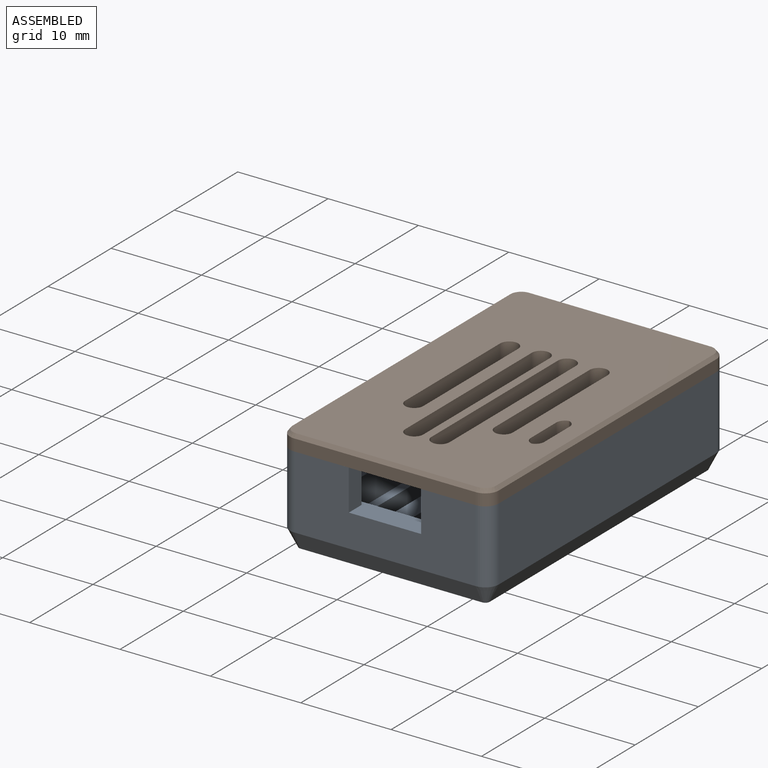
[diagram: assembled view]
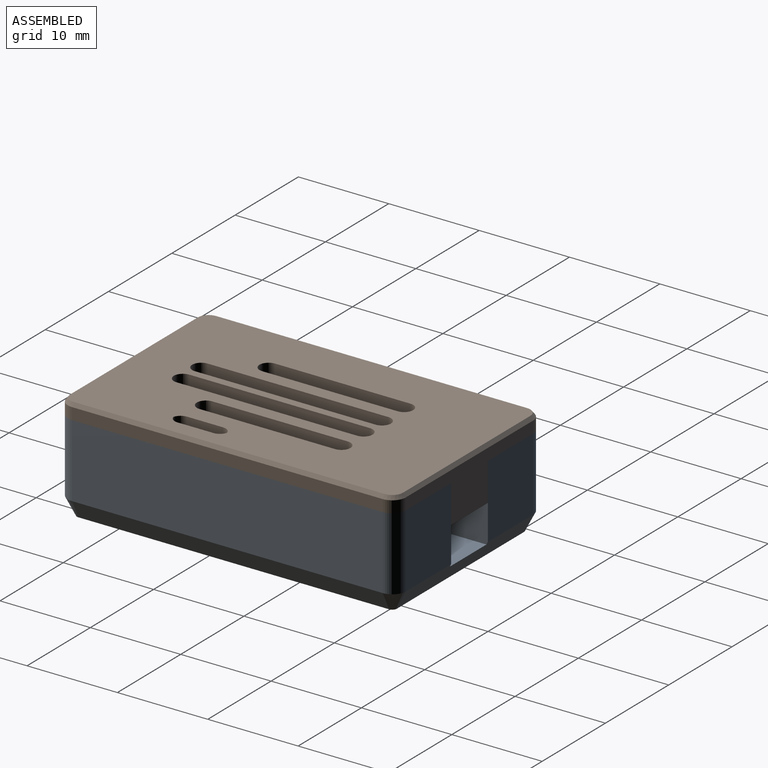
[diagram: assembled view, second angle]
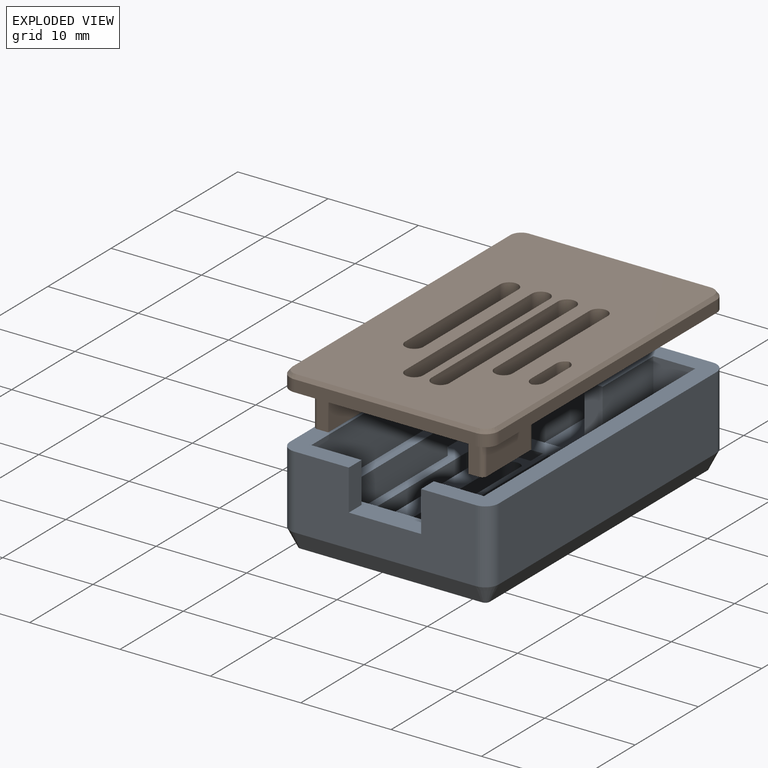
[diagram: exploded view]
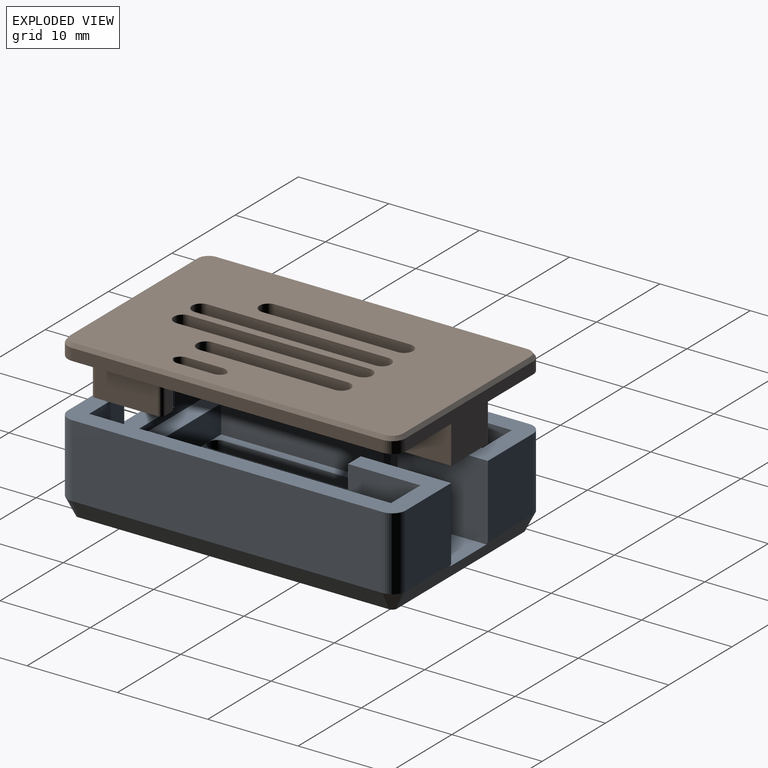
[diagram: exploded view, second angle]
ASSEMBLY  parts=2 mates=3
PART A: 67 faces, bbox 23.1x37.4x10.1 mm
  f0: plane 31.4x9.25mm, normal (0,0,1), area 146.6mm2, adj f2,f9,f13,f17,f18,f29,f31,f33
  f1: plane 3.7x1.1mm, normal (0,-1,0), area 4.1mm2, adj f7,f30,f32,f65
  f2: plane 16.9x3.1mm, normal (0,1,0), area 51.7mm2, adj f0,f7,f18,f19,f21,f32,f65,f66
  f3: plane 8.1x7.15mm, normal (0,1,0), area 57.9mm2, adj f12,f26,f38,f52
  f4: plane 35.4x21.1mm, normal (0,0,-1), area 587mm2, adj f41,f42,f43,f44,f45,f46,f47,f48
  f5: plane 37.4x8.65mm, normal (0,0,1), area 114.2mm2, adj f6,f10,f11,f14,f16,f22,f25,f27
  f6: plane 8.4x2mm, normal (0,-1,0), area 15.6mm2, adj f5,f7,f27,f30,f32,f35
  f7: plane 31.4x9.25mm, normal (0,0,1), area 146.6mm2, adj f1,f2,f6,f16,f19,f20,f30,f35
  f8: plane 9.85x5.8mm, normal (0,0,1), area 57.1mm2, adj f26,f27,f28,f52
  f9: plane 8.4x2mm, normal (0,-1,0), area 15.6mm2, adj f0,f12,f26,f29,f32,f34
  f10: plane 20.1x8.1mm, normal (0,-1,0), area 126.8mm2, adj f5,f12,f23,f24,f25,f39,f40,f53
  f11: plane 19.1x5.3mm, normal (0,1,0), area 65.2mm2, adj f5,f12,f13,f16,f21,f23,f24,f25
  f12: plane 37.4x8.65mm, normal (0,0,1), area 114.2mm2, adj f3,f9,f10,f11,f13,f15,f24,f26
  f13: plane 33.4x8.4mm, normal (-1,0,0), area 218.6mm2, adj f0,f11,f12,f17,f21,f33
  f14: plane 34.4x8.1mm, normal (-1,0,0), area 278.6mm2, adj f5,f37,f39,f56
  f15: plane 34.4x8.1mm, normal (1,0,0), area 278.6mm2, adj f12,f38,f40,f49
  f16: plane 33.4x8.4mm, normal (1,0,0), area 218.6mm2, adj f5,f7,f11,f20,f21,f36
  f17: plane 3.1x1.1mm, normal (0,1,0), area 3.4mm2, adj f0,f13,f18,f21
  f18: plane 18x3.1mm, normal (-1,0,0), area 55.8mm2, adj f0,f2,f17,f21
  f19: plane 18x3.1mm, normal (1,0,0), area 55.8mm2, adj f2,f7,f20,f21
  f20: plane 3.1x1.1mm, normal (0,1,0), area 3.4mm2, adj f7,f16,f19,f21
  f21: plane 20x19.1mm, normal (0,0,1), area 77.8mm2, adj f2,f11,f13,f16,f17,f18,f19,f20
  f22: plane 8.1x7.15mm, normal (0,1,0), area 57.9mm2, adj f5,f27,f37,f52
  f23: plane 8x2mm, normal (0,0,1), area 16mm2, adj f10,f11,f24,f25
  f24: plane 4.5x2mm, normal (-1,0,0), area 9mm2, adj f10,f11,f12,f23
  f25: plane 4.5x2mm, normal (1,0,0), area 9mm2, adj f5,f10,f11,f23
  f26: plane 10x8.4mm, normal (-1,0,0), area 84mm2, adj f3,f8,f9,f12,f28,f52
  f27: plane 10x8.4mm, normal (1,0,0), area 84mm2, adj f5,f6,f8,f22,f28,f52
  f28: plane 5.8x1.1mm, normal (0,1,0), area 6.4mm2, adj f8,f26,f27,f32
  f29: plane 2x1.1mm, normal (1,0,0), area 2.2mm2, adj f0,f9,f31,f32
  f30: plane 2x1.1mm, normal (-1,0,0), area 2.2mm2, adj f1,f6,f7,f32
  f31: plane 3.7x1.1mm, normal (0,-1,0), area 4.1mm2, adj f0,f29,f32,f66
  f32: plane 23.4x8mm, normal (0,0,1), area 28.8mm2, adj f1,f2,f6,f9,f28,f29,f30,f31
  f33: plane 8.4x4.65mm, normal (0,-1,0), area 39.1mm2, adj f0,f12,f13,f34
  f34: plane 8.4x8mm, normal (1,0,0), area 67.2mm2, adj f0,f9,f12,f33
  f35: plane 8.4x8mm, normal (-1,0,0), area 67.2mm2, adj f5,f6,f7,f36
  f36: plane 8.4x4.65mm, normal (0,-1,0), area 39.1mm2, adj f5,f7,f16,f35
  f37: cylinder r=1.5mm len=8.1mm, axis (0,0,1), area 19.1mm2, adj f5,f14,f22,f54
  f38: cylinder r=1.5mm len=8.1mm, axis (0,0,-1), area 19.1mm2, adj f3,f12,f15,f50
  f39: cylinder r=1.5mm len=8.1mm, axis (0,0,-1), area 19.1mm2, adj f5,f10,f14,f55
  f40: cylinder r=1.5mm len=8.1mm, axis (0,0,1), area 19.1mm2, adj f10,f12,f15,f51
  f41: plane 18.4x1.7mm, normal (1,0,0), area 31.3mm2, adj f4,f7,f57,f58
  f42: plane 18.4x1.7mm, normal (-1,0,0), area 31.3mm2, adj f4,f7,f57,f58
  f43: plane 18.4x1.7mm, normal (1,0,0), area 31.3mm2, adj f4,f7,f59,f60
  f44: plane 18.4x1.7mm, normal (-1,0,0), area 31.3mm2, adj f4,f7,f59,f60
  f45: plane 18.4x1.7mm, normal (1,0,0), area 31.3mm2, adj f0,f4,f61,f62
  f46: plane 18.4x1.7mm, normal (-1,0,0), area 31.3mm2, adj f0,f4,f61,f62
  f47: plane 18.4x1.7mm, normal (1,0,0), area 31.3mm2, adj f0,f4,f63,f64
  f48: plane 18.4x1.7mm, normal (-1,0,0), area 31.3mm2, adj f0,f4,f63,f64
  f49: plane 34.4x2mm, normal (0.89,0,-0.45), area 76.9mm2, adj f4,f15,f50,f51
  f50: cone r=0.5mm half-angle=26.6deg, axis (0,0,1), area 3.5mm2, adj f4,f38,f49,f52
  f51: cone r=0.5mm half-angle=26.6deg, axis (0,0,1), area 3.5mm2, adj f4,f40,f49,f53
  f52: plane 20.1x2mm, normal (0,0.89,-0.45), area 43mm2, adj f3,f4,f8,f22,f26,f27,f50,f54
  f53: plane 20.1x2mm, normal (0,-0.89,-0.45), area 44.9mm2, adj f4,f10,f51,f55
  f54: cone r=0.5mm half-angle=26.6deg, axis (0,0,1), area 3.5mm2, adj f4,f37,f52,f56
  f55: cone r=0.5mm half-angle=26.6deg, axis (0,0,1), area 3.5mm2, adj f4,f39,f53,f56
  f56: plane 34.4x2mm, normal (-0.89,0,-0.45), area 76.9mm2, adj f4,f14,f54,f55
  f57: cylinder r=1mm len=2mm, axis (0,0,1), area 5.3mm2, adj f4,f7,f41,f42
  f58: cylinder r=1mm len=2mm, axis (0,0,1), area 5.3mm2, adj f4,f7,f41,f42
  f59: cylinder r=1mm len=2mm, axis (0,0,1), area 5.3mm2, adj f4,f7,f43,f44
  f60: cylinder r=1mm len=2mm, axis (0,0,1), area 5.3mm2, adj f4,f7,f43,f44
  f61: cylinder r=1mm len=2mm, axis (0,0,1), area 5.3mm2, adj f0,f4,f45,f46
  f62: cylinder r=1mm len=2mm, axis (0,0,-1), area 5.3mm2, adj f0,f4,f45,f46
  f63: cylinder r=1mm len=2mm, axis (0,0,-1), area 5.3mm2, adj f0,f4,f47,f48
  f64: cylinder r=1mm len=2mm, axis (0,0,1), area 5.3mm2, adj f0,f4,f47,f48
  f65: plane 21.4x1.1mm, normal (-1,0,0), area 23.5mm2, adj f1,f2,f7,f32
  f66: plane 21.4x1.1mm, normal (1,0,0), area 23.5mm2, adj f0,f2,f31,f32
PART B: 80 faces, bbox 23.1x37.4x5.9 mm
  f0: plane 37.4x23.1mm, normal (0,0,-1), area 559.6mm2, adj f2,f3,f5,f7,f8,f9,f12,f13
  f1: plane 36.8x22.5mm, normal (0,0,1), area 666mm2, adj f50,f51,f52,f53,f54,f55,f56,f57
  f2: plane 12.9x4.2mm, normal (-1,0,0), area 54.2mm2, adj f0,f6,f44,f45
  f3: plane 4.2x2.2mm, normal (0,-1,0), area 5.5mm2, adj f0,f4,f6,f20,f44
  f4: plane 13.9x3.2mm, normal (1,0,0), area 44.5mm2, adj f3,f5,f6,f20
  f5: plane 4.2x2.2mm, normal (0,1,0), area 5.5mm2, adj f0,f4,f6,f20,f45
  f6: plane 13.9x1.7mm, normal (0,0,-1), area 23.5mm2, adj f2,f3,f4,f5,f44,f45
  f7: plane 4.2x2.2mm, normal (0,-1,0), area 5.5mm2, adj f0,f10,f11,f21,f42
  f8: plane 6.9x4.2mm, normal (1,0,0), area 29mm2, adj f0,f11,f42,f43
  f9: plane 4.2x2.2mm, normal (0,1,0), area 5.5mm2, adj f0,f10,f11,f21,f43
  f10: plane 7.9x3.2mm, normal (-1,0,0), area 25.3mm2, adj f7,f9,f11,f21
  f11: plane 7.9x1.7mm, normal (0,0,-1), area 13.3mm2, adj f7,f8,f9,f10,f42,f43
  f12: plane 20.1x1.3mm, normal (0,-1,0), area 26.1mm2, adj f0,f13,f19,f76
  f13: cylinder r=1.5mm len=1.5mm, axis (0,0,-1), area 3.1mm2, adj f0,f12,f14,f78
  f14: plane 34.4x1.3mm, normal (1,0,0), area 44.7mm2, adj f0,f13,f15,f79
  f15: cylinder r=1.5mm len=1.5mm, axis (0,0,-1), area 3.1mm2, adj f0,f14,f16,f77
  f16: plane 20.1x5.5mm, normal (0,1,0), area 50.5mm2, adj f0,f15,f17,f46,f47,f49,f75
  f17: cylinder r=1.5mm len=1.5mm, axis (0,0,-1), area 3.1mm2, adj f0,f16,f18,f73
  f18: plane 34.4x1.3mm, normal (-1,0,0), area 44.7mm2, adj f0,f17,f19,f72
  f19: cylinder r=1.5mm len=1.5mm, axis (0,0,-1), area 3.1mm2, adj f0,f12,f18,f74
  f20: plane 13.9x1mm, normal (0.71,0,-0.71), area 19.7mm2, adj f0,f3,f4,f5
  f21: plane 7.9x1mm, normal (-0.71,0,-0.71), area 11.2mm2, adj f0,f7,f9,f10
  f22: plane 1.6x1mm, normal (-1,0,0), area 1.6mm2, adj f0,f23,f25,f26
  f23: plane 4.45x1mm, normal (0,-1,0), area 4.4mm2, adj f0,f22,f24,f26
  f24: plane 1.6x1mm, normal (1,0,0), area 1.6mm2, adj f0,f23,f25,f26
  f25: plane 4.45x1mm, normal (0,1,0), area 4.4mm2, adj f0,f22,f24,f26
  f26: plane 4.45x1.6mm, normal (0,0,-1), area 7.1mm2, adj f22,f23,f24,f25
  f27: plane 4.45x1mm, normal (0,-1,0), area 4.4mm2, adj f0,f28,f30,f31
  f28: plane 1.6x1mm, normal (1,0,0), area 1.6mm2, adj f0,f27,f29,f31
  f29: plane 4.45x1mm, normal (0,1,0), area 4.4mm2, adj f0,f28,f30,f31
  f30: plane 1.6x1mm, normal (-1,0,0), area 1.6mm2, adj f0,f27,f29,f31
  f31: plane 4.45x1.6mm, normal (0,0,-1), area 7.1mm2, adj f27,f28,f29,f30
  f32: plane 8x1mm, normal (-1,0,0), area 8mm2, adj f0,f33,f35,f36
  f33: plane 1.4x1mm, normal (0,-1,0), area 1.4mm2, adj f0,f32,f34,f36
  f34: plane 8x1mm, normal (1,0,0), area 8mm2, adj f0,f33,f35,f36
  f35: plane 1.4x1mm, normal (0,1,0), area 1.4mm2, adj f0,f32,f34,f36
  f36: plane 8x1.4mm, normal (0,0,-1), area 11.2mm2, adj f32,f33,f34,f35
  f37: plane 1.4x1mm, normal (0,-1,0), area 1.4mm2, adj f0,f38,f40,f41
  f38: plane 8x1mm, normal (1,0,0), area 8mm2, adj f0,f37,f39,f41
  f39: plane 1.4x1mm, normal (0,1,0), area 1.4mm2, adj f0,f38,f40,f41
  f40: plane 8x1mm, normal (-1,0,0), area 8mm2, adj f0,f37,f39,f41
  f41: plane 8x1.4mm, normal (0,0,-1), area 11.2mm2, adj f37,f38,f39,f40
  f42: cylinder r=0.5mm len=4.2mm, axis (0,0,1), area 3.3mm2, adj f0,f7,f8,f11
  f43: cylinder r=0.5mm len=4.2mm, axis (0,0,-1), area 3.3mm2, adj f0,f8,f9,f11
  f44: cylinder r=0.5mm len=4.2mm, axis (0,0,1), area 3.3mm2, adj f0,f2,f3,f6
  f45: cylinder r=0.5mm len=4.2mm, axis (0,0,-1), area 3.3mm2, adj f0,f2,f5,f6
  f46: plane 8x4.2mm, normal (-1,0,0), area 33.6mm2, adj f0,f16,f48,f49
  f47: plane 8x4.2mm, normal (1,0,0), area 33.6mm2, adj f0,f16,f48,f49
  f48: plane 5.8x4.2mm, normal (0,-1,0), area 24.4mm2, adj f0,f46,f47,f49
  f49: plane 8x5.8mm, normal (0,0,-1), area 46.4mm2, adj f16,f46,f47,f48
  f50: plane 15x1.7mm, normal (-1,0,0), area 25.5mm2, adj f0,f1,f70,f71
  f51: plane 15x1.7mm, normal (1,0,0), area 25.5mm2, adj f0,f1,f70,f71
  f52: plane 4x1.7mm, normal (-1,0,0), area 6.8mm2, adj f0,f1,f61,f62
  f53: plane 4x1.7mm, normal (1,0,0), area 6.8mm2, adj f0,f1,f60,f63
  f54: plane 15x1.7mm, normal (-1,0,0), area 25.5mm2, adj f0,f1,f64,f65
  f55: plane 15x1.7mm, normal (1,0,0), area 25.5mm2, adj f0,f1,f64,f65
  f56: plane 20x1.7mm, normal (1,0,0), area 34mm2, adj f0,f1,f66,f67
  f57: plane 20x1.7mm, normal (-1,0,0), area 34mm2, adj f0,f1,f66,f67
  f58: plane 20x1.7mm, normal (-1,0,0), area 34mm2, adj f0,f1,f68,f69
  f59: plane 20x1.7mm, normal (1,0,0), area 34mm2, adj f0,f1,f68,f69
  f60: cylinder r=1mm len=1.7mm, axis (0,0,1), area 2.2mm2, adj f0,f1,f53,f61
  f61: cylinder r=1mm len=1.7mm, axis (0,0,-1), area 2.2mm2, adj f0,f1,f52,f60
  f62: cylinder r=1mm len=1.7mm, axis (0,0,1), area 2.2mm2, adj f0,f1,f52,f63
  f63: cylinder r=1mm len=1.7mm, axis (0,0,-1), area 2.2mm2, adj f0,f1,f53,f62
  f64: cylinder r=1mm len=2mm, axis (0,0,1), area 5.3mm2, adj f0,f1,f54,f55
  f65: cylinder r=1mm len=2mm, axis (0,0,1), area 5.3mm2, adj f0,f1,f54,f55
  f66: cylinder r=1mm len=2mm, axis (0,0,-1), area 5.3mm2, adj f0,f1,f56,f57
  f67: cylinder r=1mm len=2mm, axis (0,0,1), area 5.3mm2, adj f0,f1,f56,f57
  f68: cylinder r=1mm len=2mm, axis (0,0,-1), area 5.3mm2, adj f0,f1,f58,f59
  f69: cylinder r=1mm len=2mm, axis (0,0,1), area 5.3mm2, adj f0,f1,f58,f59
  f70: cylinder r=1mm len=2mm, axis (0,0,1), area 5.3mm2, adj f0,f1,f50,f51
  f71: cylinder r=1mm len=2mm, axis (0,0,-1), area 5.3mm2, adj f0,f1,f50,f51
  f72: plane 34.4x0.4mm, normal (-0.8,0,0.6), area 17.2mm2, adj f1,f18,f73,f74
  f73: cone r=1.2mm half-angle=36.9deg, axis (0,0,-1), area 1.1mm2, adj f1,f17,f72,f75
  f74: cone r=1.2mm half-angle=36.9deg, axis (0,0,-1), area 1.1mm2, adj f1,f19,f72,f76
  f75: plane 20.1x0.4mm, normal (0,0.8,0.6), area 10mm2, adj f1,f16,f73,f77
  f76: plane 20.1x0.4mm, normal (0,-0.8,0.6), area 10.1mm2, adj f1,f12,f74,f78
  f77: cone r=1.2mm half-angle=36.9deg, axis (0,0,-1), area 1.1mm2, adj f1,f15,f75,f79
  f78: cone r=1.2mm half-angle=36.9deg, axis (0,0,-1), area 1.1mm2, adj f1,f13,f76,f79
  f79: plane 34.4x0.4mm, normal (0.8,0,0.6), area 17.2mm2, adj f1,f14,f77,f78
PLACE A t=(-18.1,-20.12,6)mm
PLACE B t=(-18.1,-20.12,6)mm
MATE planar A.f5 <-> B.f0  axis (0,0,1) through (-26.85,-24.3,16.1)mm
MATE planar B.f14 <-> A.f15  axis (1,0,0) through (-6.55,-26.42,16.75)mm
MATE planar B.f12 <-> A.f10  axis (0,-1,0) through (-18.1,-45.12,17.4)mm
